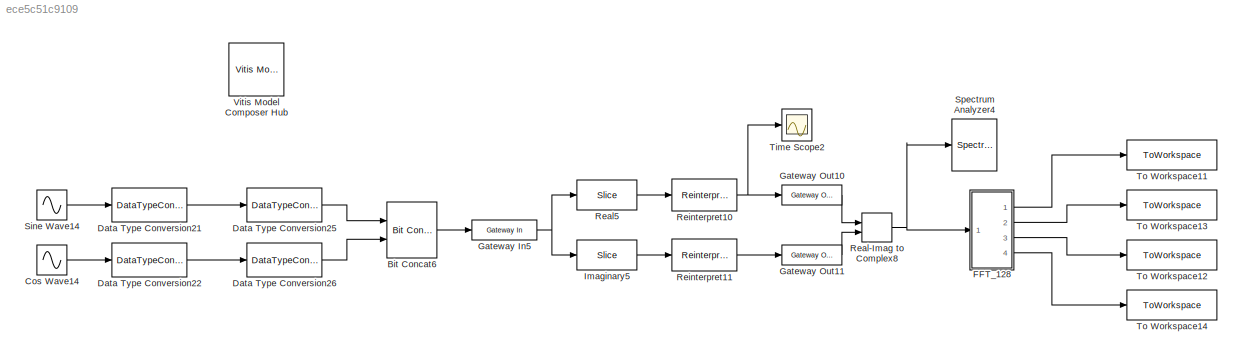
MODEL slx_ece5c51c9109
KIND model
CONFIG AbsTol = auto
CONFIG EnableMultiTasking = off
CONFIG FixedStep = auto
CONFIG InitFcn = f = 12.288e6;\nfs = 153.6e6;\nN = 2048;\nn = 0:N-1;\nHamming = 0.54 + 0.46 * cos(2*pi*n/N);\nHanning = 0.5 * (1 + cos(2*pi*n/N));\nNorm_Ham = sum(Hamming);\nNorm_Han = sum(Hanning);
CONFIG MaxStep = auto
CONFIG MinStep = auto
CONFIG RelTol = 1e-3
CONFIG SampleTimeConstraint = Unconstrained
CONFIG SolverName = VariableStepAuto
CONFIG StartTime = 0.0
CONFIG StopTime = 2048*15/fs
BLOCK [Reference] Bit Concat6  REF=hdlsllib/Logic and Bit
Operations/Bit Concat
  Ports = [2, 1]
  SourceBlock = hdlsllib/Logic and Bit\nOperations/Bit Concat
  SourceProductBaseCode = SL
  SourceType = Bit Concat
BLOCK [Sin] Cos Wave14
  Frequency = f*2*pi
  Phase = pi/2
  Ports = [0, 1]
  SampleTime = 1/fs
BLOCK [DataTypeConversion] Data Type Conversion21
  OutDataTypeStr = fixdt(1,16,15)
  RndMeth = Floor
BLOCK [DataTypeConversion] Data Type Conversion22
  OutDataTypeStr = fixdt(1,16,15)
  RndMeth = Floor
BLOCK [DataTypeConversion] Data Type Conversion25
  ConvertRealWorld = Stored Integer (SI)
  OutDataTypeStr = uint16
  RndMeth = Floor
  SaturateOnIntegerOverflow = off
BLOCK [DataTypeConversion] Data Type Conversion26
  ConvertRealWorld = Stored Integer (SI)
  OutDataTypeStr = uint16
  RndMeth = Floor
  SaturateOnIntegerOverflow = off
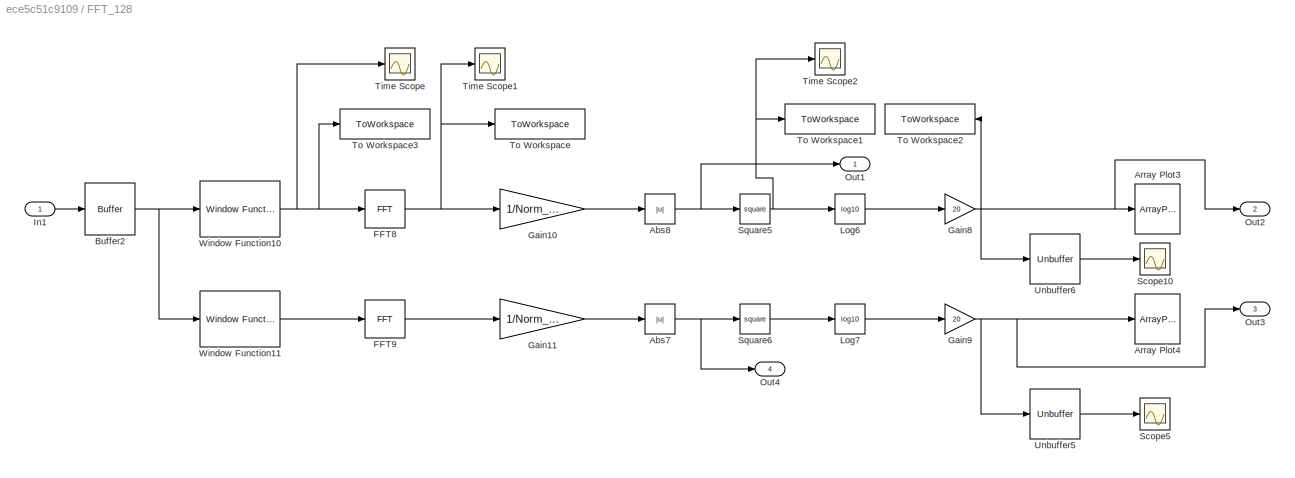
BLOCK [SubSystem] FFT_128
  Ports = [1, 4]
  RequestExecContextInheritance = off
BLOCK [Abs] FFT_128/Abs7
  SaturateOnIntegerOverflow = off
BLOCK [Abs] FFT_128/Abs8
  SaturateOnIntegerOverflow = off
BLOCK [ArrayPlot] FFT_128/Array Plot3
  GraphicalSettings = {"Style":{"BackgroundColor":[0.1568627450980392,0.1568627450980392,0.1568627450980392],"AxesColor":[0,0,0],"LabelsColor":[0.6862745098039216,0.6862745098039216,0.6862745098039216],"LineStyle":["-","-"],"LineColor":[[1,1,0.06666666666666667],[0.07450980392156863,0.6235294117647059,1]],"LineWidth":[1.5,1.5],"Marker":["o","o"],"FontSize":"small"}}
  Ports = [1]
  ShowLegend = on
  WindowPosition = [827.000000,398.000000,581.000000,481.000000,]
  YLimits = [-59.68956955456875,167.07325575587276]
BLOCK [ArrayPlot] FFT_128/Array Plot4
  GraphicalSettings = {"Style":{"BackgroundColor":[0.1568627450980392,0.1568627450980392,0.1568627450980392],"AxesColor":[0,0,0],"LabelsColor":[0.6862745098039216,0.6862745098039216,0.6862745098039216],"LineStyle":["-","-"],"LineColor":[[1,1,0.06666666666666667],[0.07450980392156863,0.6235294117647059,1]],"LineWidth":[1.5,1.5],"Marker":["o","o"],"FontSize":"small"}}
  Ports = [1]
  ShowLegend = on
  WindowPosition = [214.000000,393.000000,581.000000,481.000000,]
  YLimits = [-59.68956955456875,167.07325575587276]
BLOCK [Buffer] FFT_128/Buffer2
  N = N
  OutputFrames = off
BLOCK [Reference] FFT_128/FFT8  REF=dspxfrm3/FFT
  Ports = [1, 1]
  SourceBlock = dspxfrm3/FFT
  SourceProductBaseCode = DS
  SourceType = FFT
BLOCK [Reference] FFT_128/FFT9  REF=dspxfrm3/FFT
  Ports = [1, 1]
  SourceBlock = dspxfrm3/FFT
  SourceProductBaseCode = DS
  SourceType = FFT
BLOCK [Gain] FFT_128/Gain10
  Gain = 1/Norm_Ham
BLOCK [Gain] FFT_128/Gain11
  Gain = 1/Norm_Han
BLOCK [Gain] FFT_128/Gain8
  Gain = 20
BLOCK [Gain] FFT_128/Gain9
  Gain = 20
BLOCK [Inport] FFT_128/In1
BLOCK [Math] FFT_128/Log6
  Operator = log10
  OutputSignalType = complex
  Ports = [1, 1]
BLOCK [Math] FFT_128/Log7
  Operator = log10
  OutputSignalType = complex
  Ports = [1, 1]
BLOCK [Outport] FFT_128/Out1
BLOCK [Outport] FFT_128/Out2
  Port = 2
BLOCK [Outport] FFT_128/Out3
  Port = 3
BLOCK [Outport] FFT_128/Out4
  Port = 4
BLOCK [Scope] FFT_128/Scope10
  Floating = off
  NumInputPorts = 1
  Ports = [1]
  ScopeSpecificationString = Simulink.scopes.TimeScopeBlockCfg('CurrentConfiguration', extmgr.ConfigurationSet(extmgr.Configuration('Core','General UI',true),extmgr.Configuration('Core','Source UI',true),extmgr.Configuration('Sources','WiredSimulink',true,'DataLoggingVariableName','ScopeData1'),extmgr.Configuration('Visuals','Time Domain',true,'SerializedDisplays',{struct('MinYLimReal','-63.08647','MaxYLimReal','113.79338','Y...<+1431ch>
BLOCK [Scope] FFT_128/Scope5
  Floating = off
  NumInputPorts = 1
  Ports = [1]
  ScopeSpecificationString = Simulink.scopes.TimeScopeBlockCfg('CurrentConfiguration', extmgr.ConfigurationSet(extmgr.Configuration('Core','General UI',true),extmgr.Configuration('Core','Source UI',true),extmgr.Configuration('Sources','WiredSimulink',true,'DataLoggingVariableName','ScopeData2'),extmgr.Configuration('Visuals','Time Domain',true,'SerializedDisplays',{struct('MinYLimReal','-63.361','MaxYLimReal','107.27749','YLa...<+1457ch>
BLOCK [Math] FFT_128/Square5
  Operator = square
  Ports = [1, 1]
BLOCK [Math] FFT_128/Square6
  Operator = square
  Ports = [1, 1]
BLOCK [Scope] FFT_128/Time Scope
  DefaultConfigurationName = spbscopes.TimeScopeBlockCfg
  Floating = off
  NumInputPorts = 1
  Ports = [1]
  ScopeSpecificationString = spbscopes.TimeScopeBlockCfg('CurrentConfiguration', extmgr.ConfigurationSet(extmgr.Configuration('Core','General UI',true,'FigureColor',[0.156862745098039 0.156862745098039 0.156862745098039]),extmgr.Configuration('Core','Source UI',true),extmgr.Configuration('Sources','WiredSimulink',true,'DataLoggingVariableName','ScopeData1'),extmgr.Configuration('Visuals','Time Domain',true,'DisplayPropertyDef...<+1518ch>
  UserDataPersistent = on
BLOCK [Scope] FFT_128/Time Scope1
  DefaultConfigurationName = spbscopes.TimeScopeBlockCfg
  Floating = off
  NumInputPorts = 1
  Ports = [1]
  ScopeSpecificationString = spbscopes.TimeScopeBlockCfg('CurrentConfiguration', extmgr.ConfigurationSet(extmgr.Configuration('Core','General UI',true,'FigureColor',[0.156862745098039 0.156862745098039 0.156862745098039]),extmgr.Configuration('Core','Source UI',true),extmgr.Configuration('Sources','WiredSimulink',true,'DataLoggingVariableName','ScopeData1'),extmgr.Configuration('Visuals','Time Domain',true,'DisplayPropertyDef...<+1545ch>
  UserDataPersistent = on
BLOCK [Scope] FFT_128/Time Scope2
  DefaultConfigurationName = spbscopes.TimeScopeBlockCfg
  Floating = off
  NumInputPorts = 1
  Ports = [1]
  ScopeSpecificationString = spbscopes.TimeScopeBlockCfg('CurrentConfiguration', extmgr.ConfigurationSet(extmgr.Configuration('Core','General UI',true,'FigureColor',[0.156862745098039 0.156862745098039 0.156862745098039]),extmgr.Configuration('Core','Source UI',true),extmgr.Configuration('Sources','WiredSimulink',true,'DataLoggingVariableName','ScopeData2'),extmgr.Configuration('Visuals','Time Domain',true,'DisplayPropertyDef...<+1508ch>
  UserDataPersistent = on
BLOCK [ToWorkspace] FFT_128/To Workspace
  FixptAsFi = on
  MaxDataPoints = inf
  Ports = [1]
  SampleTime = -1
  Save2DSignal = 2-D array (concatenate along first dimension)
  VariableName = simoutFFT
BLOCK [ToWorkspace] FFT_128/To Workspace1
  FixptAsFi = on
  MaxDataPoints = inf
  Ports = [1]
  SampleTime = -1
  Save2DSignal = 2-D array (concatenate along first dimension)
  VariableName = simoutFFTabs
BLOCK [ToWorkspace] FFT_128/To Workspace2
  FixptAsFi = on
  MaxDataPoints = inf
  NameLocation = top
  Ports = [1]
  SampleTime = -1
  Save2DSignal = 2-D array (concatenate along first dimension)
  VariableName = simoutFFTlog
BLOCK [ToWorkspace] FFT_128/To Workspace3
  FixptAsFi = on
  MaxDataPoints = inf
  Ports = [1]
  SampleTime = -1
  Save2DSignal = 2-D array (concatenate along first dimension)
  VariableName = inputFFT
BLOCK [Unbuffer] FFT_128/Unbuffer5
  Ports = [1, 1]
BLOCK [Unbuffer] FFT_128/Unbuffer6
  Ports = [1, 1]
BLOCK [Reference] FFT_128/Window Function10  REF=dspsigops/Window
Function
  Ports = [1, 1]
  SourceBlock = dspsigops/Window\nFunction
  SourceProductBaseCode = DS
  SourceType = Window Function
BLOCK [Reference] FFT_128/Window Function11  REF=dspsigops/Window
Function
  Ports = [1, 1]
  SourceBlock = dspsigops/Window\nFunction
  SourceProductBaseCode = DS
  SourceType = Window Function
BLOCK [Reference] Gateway In5  REF=hdlBasic/Gateway In
  Ports = [1, 1]
  SourceBlock = hdlBasic/Gateway In
  SourceType = Gateway In Block
BLOCK [Reference] Gateway Out10  REF=hdlBasic/Gateway Out
  Ports = [1, 1]
  SourceBlock = hdlBasic/Gateway Out
  SourceType = Gateway Out Block
BLOCK [Reference] Gateway Out11  REF=hdlBasic/Gateway Out
  Ports = [1, 1]
  SourceBlock = hdlBasic/Gateway Out
  SourceType = Gateway Out Block
BLOCK [Reference] Imaginary5  REF=hdlBasic/Slice
  Ports = [1, 1]
  SourceBlock = hdlBasic/Slice
  SourceType = Bit Slice Extractor Block
BLOCK [RealImagToComplex] Real-Imag to Complex8
  Ports = [2, 1]
BLOCK [Reference] Real5  REF=hdlBasic/Slice
  Ports = [1, 1]
  SourceBlock = hdlBasic/Slice
  SourceType = Bit Slice Extractor Block
BLOCK [Reference] Reinterpret10  REF=hdlBasic/Reinterpret
  Ports = [1, 1]
  SourceBlock = hdlBasic/Reinterpret
  SourceType = Type Reinterpreter Block
BLOCK [Reference] Reinterpret11  REF=hdlBasic/Reinterpret
  Ports = [1, 1]
  SourceBlock = hdlBasic/Reinterpret
  SourceType = Type Reinterpreter Block
BLOCK [Sin] Sine Wave14
  Frequency = f*2*pi
  Ports = [0, 1]
  SampleTime = 1/fs
BLOCK [SpectrumAnalyzer] Spectrum Analyzer4
  Ports = [1]
  ScopeSpecificationString = spbscopes.SpectrumAnalyzerBlockCfg('CurrentConfiguration', extmgr.ConfigurationSet(extmgr.Configuration('Core','General UI',true),extmgr.Configuration('Core','Source UI',true),extmgr.Configuration('Sources','WiredSimulink',true),extmgr.Configuration('Visuals','Spectrum',true,'AxesProperties',struct('Color',{[0 0 0],[0 0 0]},'XColor',{[0.686274509803922 0.686274509803922 0.686274509803922],[0.68627...<+1929ch>
BLOCK [Scope] Time Scope2
  DefaultConfigurationName = spbscopes.TimeScopeBlockCfg
  Floating = off
  NumInputPorts = 1
  Ports = [1]
  ScopeSpecificationString = spbscopes.TimeScopeBlockCfg('CurrentConfiguration', extmgr.ConfigurationSet(extmgr.Configuration('Core','General UI',true,'FigureColor',[0.156862745098039 0.156862745098039 0.156862745098039]),extmgr.Configuration('Core','Source UI',true),extmgr.Configuration('Sources','WiredSimulink',true,'DataLoggingVariableName','ScopeData2'),extmgr.Configuration('Visuals','Time Domain',true,'DisplayPropertyDef...<+1512ch>
  UserDataPersistent = on
BLOCK [ToWorkspace] To Workspace11
  FixptAsFi = on
  MaxDataPoints = inf
  Ports = [1]
  SampleTime = -1
  Save2DSignal = 2-D array (concatenate along first dimension)
  VariableName = Abs
BLOCK [ToWorkspace] To Workspace12
  FixptAsFi = on
  MaxDataPoints = inf
  Ports = [1]
  SampleTime = -1
  Save2DSignal = 2-D array (concatenate along first dimension)
  VariableName = LogCmult1
BLOCK [ToWorkspace] To Workspace13
  FixptAsFi = on
  MaxDataPoints = inf
  Ports = [1]
  SampleTime = -1
  Save2DSignal = 2-D array (concatenate along first dimension)
  VariableName = LogCmult
BLOCK [ToWorkspace] To Workspace14
  FixptAsFi = on
  MaxDataPoints = inf
  Ports = [1]
  SampleTime = -1
  Save2DSignal = 2-D array (concatenate along first dimension)
  VariableName = Abs1
BLOCK [Reference] Vitis Model Composer Hub  REF=vmcUtilities/Vitis Model Composer Hub
  Ports = []
  SourceBlock = vmcUtilities/Vitis Model Composer Hub
  SourceType = Implementation
  Tag = genX
  UserDataPersistent = on
LINE Bit Concat6:1 -> Gateway In5:1
LINE Cos Wave14:1 -> Data Type Conversion22:1
LINE Data Type Conversion21:1 -> Data Type Conversion25:1
LINE Data Type Conversion22:1 -> Data Type Conversion26:1
LINE Data Type Conversion25:1 -> Bit Concat6:1
LINE Data Type Conversion26:1 -> Bit Concat6:2
NET FFT_128/Abs7:1 -> FFT_128/Out4:1, FFT_128/Square6:1
NET FFT_128/Abs8:1 -> FFT_128/Out1:1, FFT_128/Square5:1
NET FFT_128/Buffer2:1 -> FFT_128/Window Function10:1, FFT_128/Window Function11:1
NET FFT_128/FFT8:1 -> FFT_128/Gain10:1, FFT_128/Time Scope1:1, FFT_128/To Workspace:1
LINE FFT_128/FFT9:1 -> FFT_128/Gain11:1
LINE FFT_128/Gain10:1 -> FFT_128/Abs8:1
LINE FFT_128/Gain11:1 -> FFT_128/Abs7:1
NET FFT_128/Gain8:1 -> FFT_128/Array Plot3:1, FFT_128/Out2:1, FFT_128/To Workspace2:1, FFT_128/Unbuffer6:1
NET FFT_128/Gain9:1 -> FFT_128/Array Plot4:1, FFT_128/Out3:1, FFT_128/Unbuffer5:1
LINE FFT_128/In1:1 -> FFT_128/Buffer2:1
LINE FFT_128/Log6:1 -> FFT_128/Gain8:1
LINE FFT_128/Log7:1 -> FFT_128/Gain9:1
NET FFT_128/Square5:1 -> FFT_128/Log6:1, FFT_128/Time Scope2:1, FFT_128/To Workspace1:1
LINE FFT_128/Square6:1 -> FFT_128/Log7:1
LINE FFT_128/Unbuffer5:1 -> FFT_128/Scope5:1
LINE FFT_128/Unbuffer6:1 -> FFT_128/Scope10:1
NET FFT_128/Window Function10:1 -> FFT_128/FFT8:1, FFT_128/Time Scope:1, FFT_128/To Workspace3:1
LINE FFT_128/Window Function11:1 -> FFT_128/FFT9:1
LINE FFT_128:1 -> To Workspace11:1
LINE FFT_128:2 -> To Workspace13:1
LINE FFT_128:3 -> To Workspace12:1
LINE FFT_128:4 -> To Workspace14:1
NET Gateway In5:1 -> Imaginary5:1, Real5:1
LINE Gateway Out10:1 -> Real-Imag to Complex8:1
LINE Gateway Out11:1 -> Real-Imag to Complex8:2
LINE Imaginary5:1 -> Reinterpret11:1
NET Real-Imag to Complex8:1 -> FFT_128:1, Spectrum Analyzer4:1
LINE Real5:1 -> Reinterpret10:1
NET Reinterpret10:1 -> Gateway Out10:1, Time Scope2:1
LINE Reinterpret11:1 -> Gateway Out11:1
LINE Sine Wave14:1 -> Data Type Conversion21:1
note: NET lines group one-source signal fan-out (src -> all destinations, sorted); 1:1 wires keep LINE
